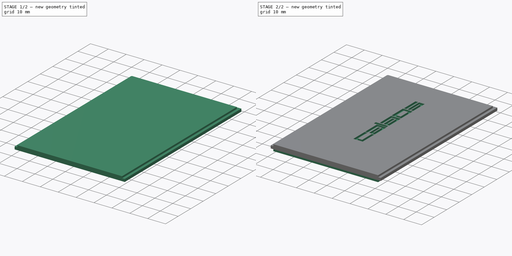
[diagram: build sequence overview — one tinted view per stage of 2, left to right]
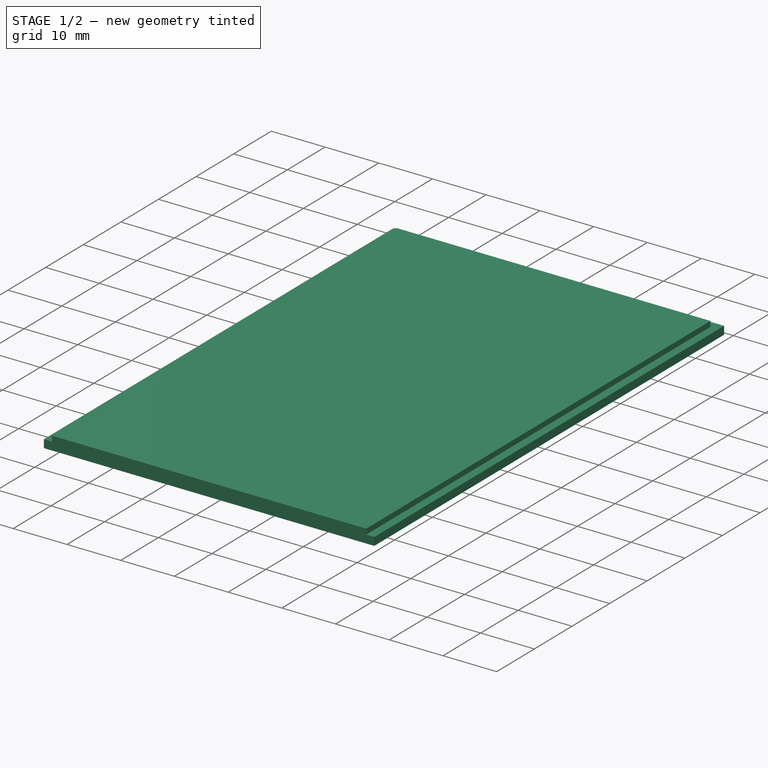
[diagram: stage 1 of 2 — iso view after this stage's code; geometry added in this stage tinted green]
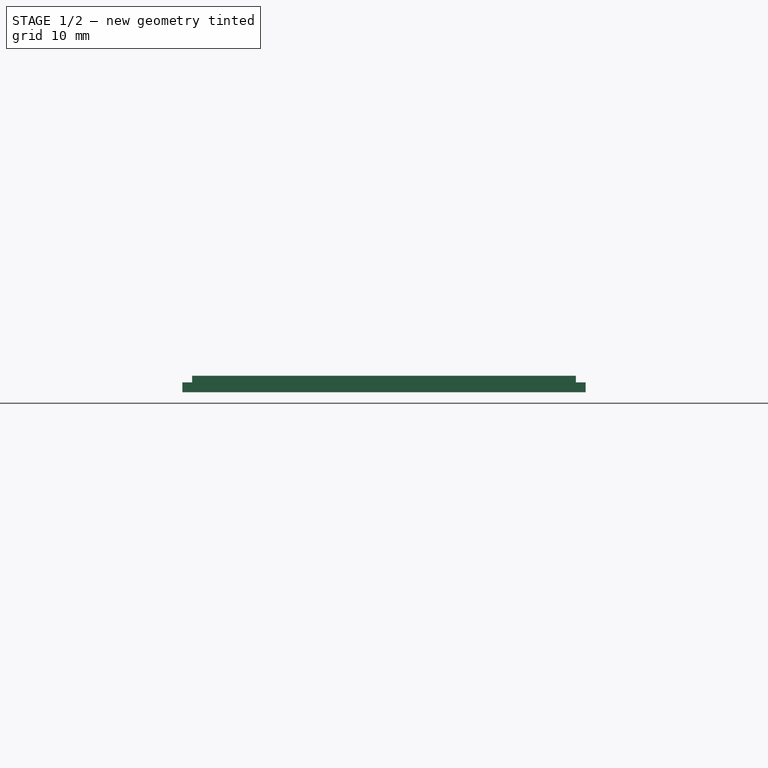
[diagram: stage 1 of 2 — front view after this stage's code; geometry added in this stage tinted green]
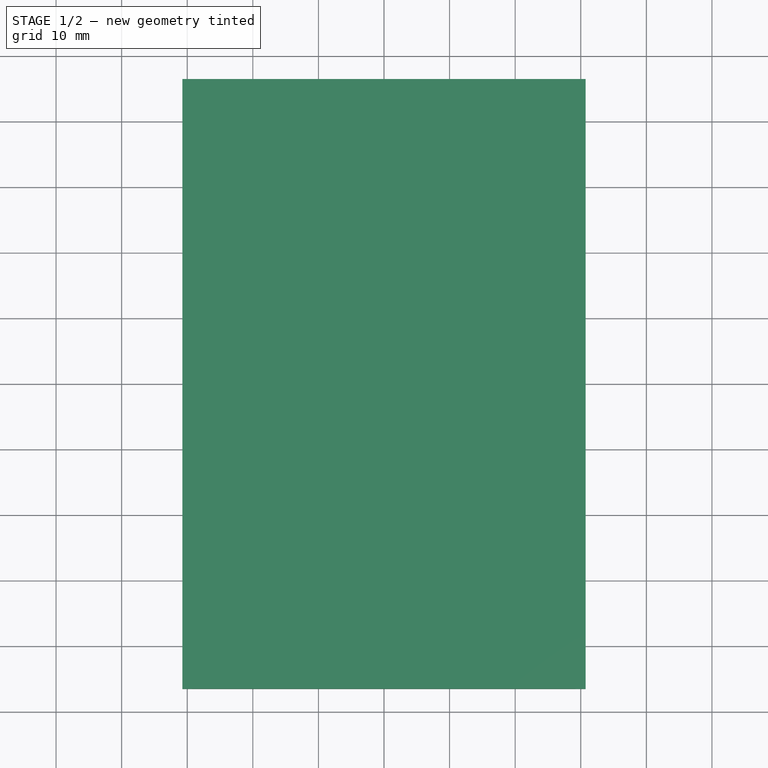
[diagram: stage 1 of 2 — top view after this stage's code; geometry added in this stage tinted green]
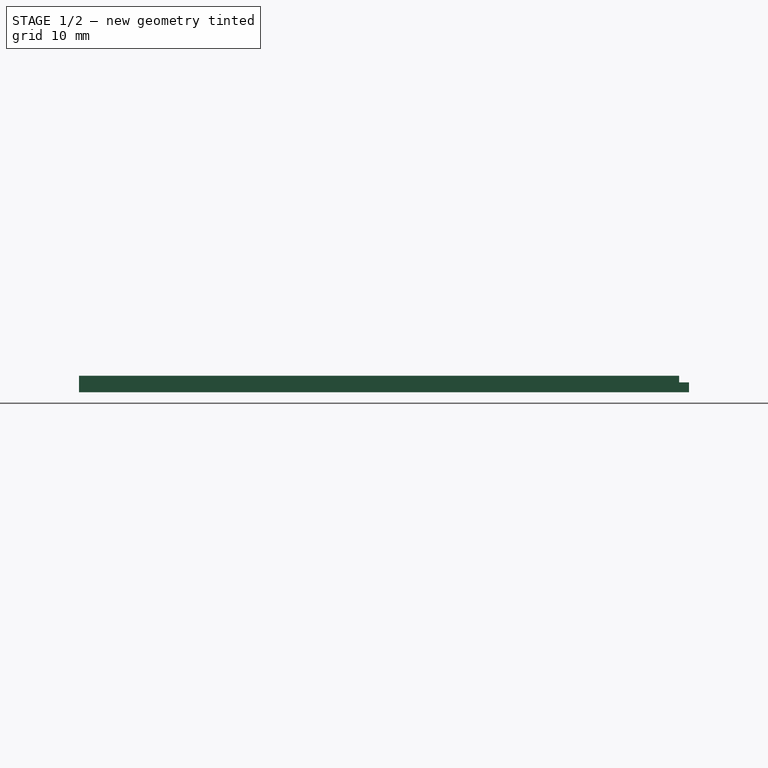
[diagram: stage 1 of 2 — right view after this stage's code; geometry added in this stage tinted green]
FCSTD DOCUMENT  (FreeCAD 0.16RUnknown)
Label: cover_calaos_server
License: All rights reserved
LicenseURL: http://en.wikipedia.org/wiki/All_rights_reserved
objects: Sketcher::SketchObject×4, PartDesign::Pad×3, Image::ImagePlane×1, PartDesign::Pocket×1
note: 12 computed .brp shape members not serialized (recipe doc carries the construction recipe); baked Part::Feature solids carry a one-line shape summary decoded from their .brp

FEATURE [Sketcher::SketchObject] Sketch
  sketch-geometry (4):
    g0: LineSegment StartX=-30.75 StartY=46.5 StartZ=0 EndX=30.75 EndY=46.5 EndZ=0
    g1: LineSegment StartX=30.75 StartY=46.5 StartZ=0 EndX=30.75 EndY=-46.5 EndZ=0
    g2: LineSegment StartX=30.75 StartY=-46.5 StartZ=0 EndX=-30.75 EndY=-46.5 EndZ=0
    g3: LineSegment StartX=-30.75 StartY=-46.5 StartZ=0 EndX=-30.75 EndY=46.5 EndZ=0
  constraints (12):
    c: Coincident(g0,g1)
    c: Coincident(g1,g2)
    c: Coincident(g2,g3)
    c: Coincident(g3,g0)
    c: Horizontal(g0)
    c: Horizontal(g2)
    c: Vertical(g1)
    c: Vertical(g3)
    c: Symmetric(g0,g0,g-2)
    c: Symmetric(g0,g1,g-1)
    c: Distance(g1) = 93
    c: Distance(g0) = 61.5
FEATURE [PartDesign::Pad] Pad  label="rail"
  Length = 1.5
  Length2 = 100
  Sketch = -> Sketch
  Type = 0
FEATURE [Sketcher::SketchObject] Sketch001
  ExternalGeometry = -> [Pad]
  Placement = pos=(0,0,1.5) rot=(0,0,1;0rad)
  Support = -> Pad [Face6]
  sketch-geometry (4):
    g0: LineSegment StartX=-29.25 StartY=-46.5 StartZ=0 EndX=29.25 EndY=-46.5 EndZ=0
    g1: LineSegment StartX=29.25 StartY=-46.5 StartZ=0 EndX=29.25 EndY=45 EndZ=0
    g2: LineSegment StartX=29.25 StartY=45 StartZ=0 EndX=-29.25 EndY=45 EndZ=0
    g3: LineSegment StartX=-29.25 StartY=45 StartZ=0 EndX=-29.25 EndY=-46.5 EndZ=0
  constraints (12):
    c: Coincident(g0,g1)
    c: Coincident(g1,g2)
    c: Coincident(g2,g3)
    c: Coincident(g3,g0)
    c: Horizontal(g0)
    c: Horizontal(g2)
    c: Vertical(g1)
    c: Vertical(g3)
    c: PointOnObject(g0,g-3)
    c: Symmetric(g1,g2,g-2)
    c: Distance(g1) = 91.5
    c: Distance(g2) = 58.5
FEATURE [PartDesign::Pad] Pad001  label="top"
  Length = 1
  Length2 = 100
  Sketch = -> Sketch001
  Type = 0
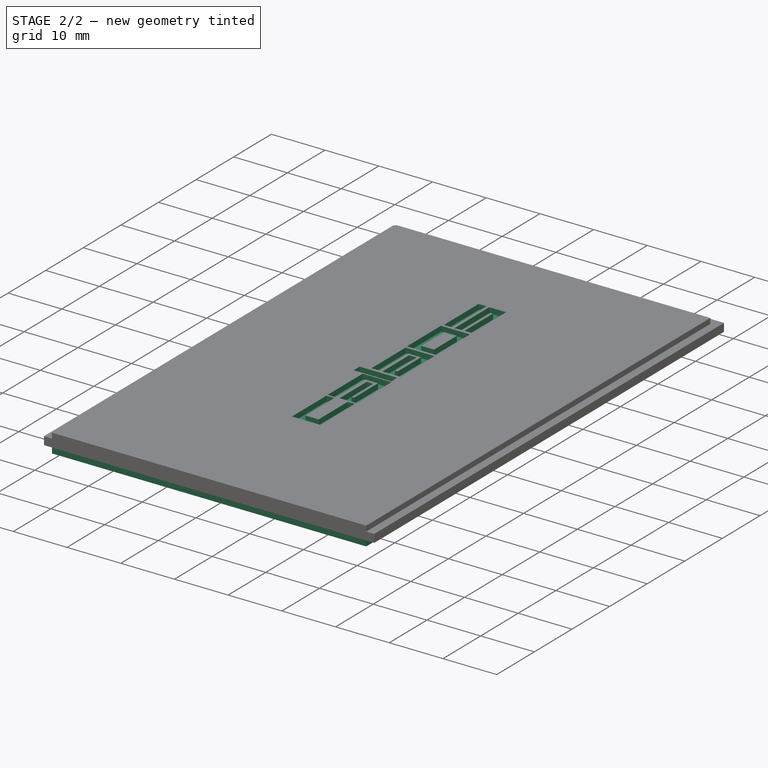
[diagram: stage 2 of 2 — iso view after this stage's code; geometry added in this stage tinted green]
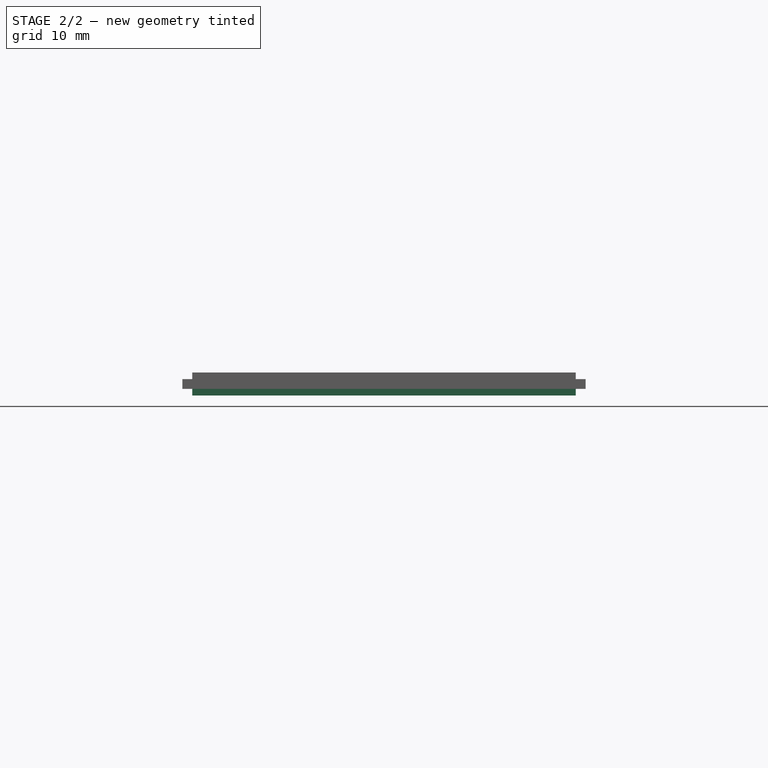
[diagram: stage 2 of 2 — front view after this stage's code; geometry added in this stage tinted green]
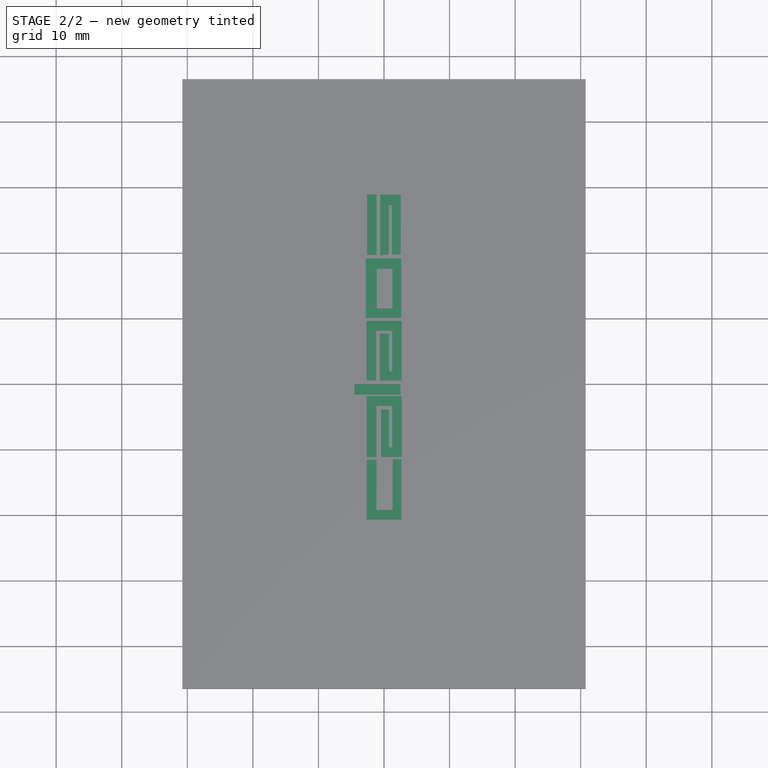
[diagram: stage 2 of 2 — top view after this stage's code; geometry added in this stage tinted green]
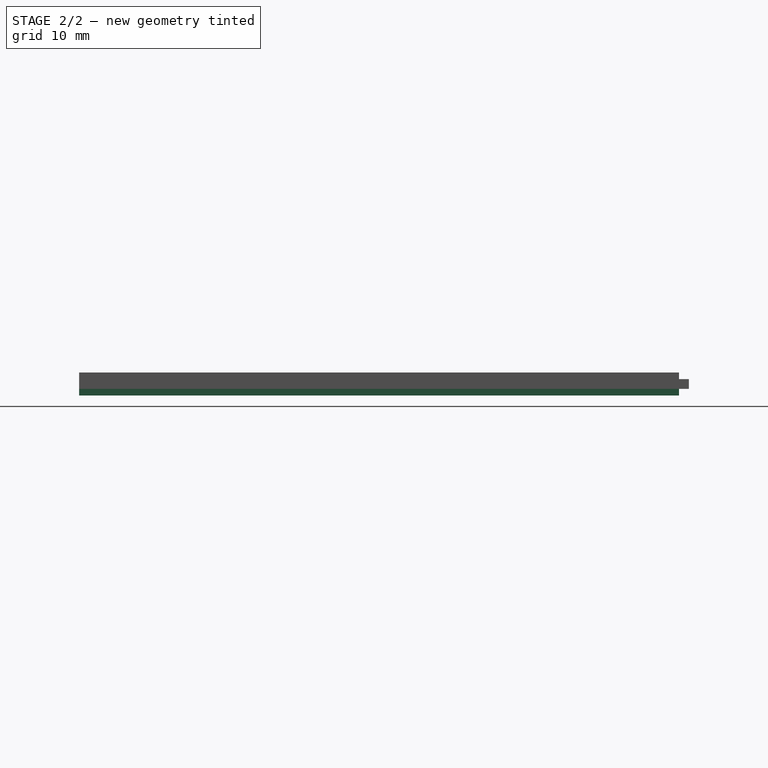
[diagram: stage 2 of 2 — right view after this stage's code; geometry added in this stage tinted green]
FEATURE [Sketcher::SketchObject] Sketch002
  ExternalGeometry = -> [Pad001]
  Placement = pos=(0,0,0) rot=(1,0,0;3.14159rad)
  Support = -> Pad001 [Face4]
  sketch-geometry (4):
    g0: LineSegment StartX=29.25 StartY=46.5 StartZ=0 EndX=-29.25 EndY=46.5 EndZ=0
    g1: LineSegment StartX=-29.25 StartY=46.5 StartZ=0 EndX=-29.25 EndY=-45 EndZ=0
    g2: LineSegment StartX=-29.25 StartY=-45 StartZ=0 EndX=29.25 EndY=-45 EndZ=0
    g3: LineSegment StartX=29.25 StartY=-45 StartZ=0 EndX=29.25 EndY=46.5 EndZ=0
  constraints (12):
    c: Coincident(g0,g1)
    c: Coincident(g1,g2)
    c: Coincident(g2,g3)
    c: Coincident(g3,g0)
    c: Horizontal(g0)
    c: Horizontal(g2)
    c: Vertical(g1)
    c: Vertical(g3)
    c: PointOnObject(g0,g-3)
    c: Symmetric(g2,g1,g-2)
    c: Distance(g3) = 91.5
    c: Distance(g2) = 58.5
FEATURE [PartDesign::Pad] Pad002  label="bottom"
  Length = 1
  Length2 = 100
  Sketch = -> Sketch002
  Type = 0
FEATURE [Image::ImagePlane] ImagePlane
  Placement = pos=(0,-1,9) rot=(0,0,1;1.5708rad)
  XSize = 60
  YSize = 9.49
FEATURE [Sketcher::SketchObject] Sketch003
  Placement = pos=(0,0,2.5) rot=(0,0,1;0rad)
  Support = -> Pad002 [Face16]
  sketch-geometry (56):
    g0: LineSegment StartX=-2.62154 StartY=-11.5568 StartZ=0 EndX=-1.14376 EndY=-11.5568 EndZ=0
    g1: LineSegment StartX=-1.14376 StartY=-11.5568 StartZ=0 EndX=-1.14376 EndY=-19.2624 EndZ=0
    g2: LineSegment StartX=-1.14376 StartY=-19.2624 StartZ=0 EndX=1.31042 EndY=-19.2624 EndZ=0
    g3: LineSegment StartX=1.31042 StartY=-19.2624 StartZ=0 EndX=1.31042 EndY=-11.5304 EndZ=0
    g4: LineSegment StartX=1.31042 StartY=-11.5304 StartZ=0 EndX=2.62988 EndY=-11.5304 EndZ=0
    g5: LineSegment StartX=2.62988 StartY=-11.5304 StartZ=0 EndX=2.62988 EndY=-20.7138 EndZ=0
    g6: LineSegment StartX=2.62988 StartY=-20.7138 StartZ=0 EndX=-2.62154 EndY=-20.7138 EndZ=0
    g7: LineSegment StartX=-2.62154 StartY=-20.7138 StartZ=0 EndX=-2.62154 EndY=-11.5568 EndZ=0
    g8: LineSegment StartX=-2.64775 StartY=-11.1811 StartZ=0 EndX=-1.14376 EndY=-11.1811 EndZ=0
    g9: LineSegment StartX=-1.14376 StartY=-11.1811 StartZ=0 EndX=-1.14376 EndY=-3.37615 EndZ=0
    g10: LineSegment StartX=-1.14376 StartY=-3.37615 StartZ=0 EndX=1.25765 EndY=-3.37615 EndZ=0
    g11: LineSegment StartX=1.25765 StartY=-3.37615 StartZ=0 EndX=1.25765 EndY=-9.73591 EndZ=0
    g12: LineSegment StartX=1.25765 StartY=-9.73591 StartZ=0 EndX=0.756256 EndY=-9.73591 EndZ=0
    g13: LineSegment StartX=0.756256 StartY=-9.73591 StartZ=0 EndX=0.756256 EndY=-3.93032 EndZ=0
    g14: LineSegment StartX=0.756256 StartY=-3.93032 StartZ=0 EndX=-0.45764 EndY=-3.93032 EndZ=0
    g15: LineSegment StartX=-0.45764 StartY=-3.93032 StartZ=0 EndX=-0.45764 EndY=-11.1609 EndZ=0
    g16: LineSegment StartX=-0.45764 StartY=-11.1609 StartZ=0 EndX=2.70905 EndY=-11.1609 EndZ=0
    g17: LineSegment StartX=2.70905 StartY=-11.1609 StartZ=0 EndX=2.70905 EndY=-1.89211 EndZ=0
    g18: LineSegment StartX=2.70905 StartY=-1.89211 StartZ=0 EndX=-2.64775 EndY=-1.89211 EndZ=0
    g19: LineSegment StartX=-2.64775 StartY=-1.89211 StartZ=0 EndX=-2.64775 EndY=-11.1811 EndZ=0
    g20: LineSegment StartX=-4.4954 StartY=-0.064355 StartZ=0 EndX=2.47131 EndY=-0.064355 EndZ=0
    g21: LineSegment StartX=2.47131 StartY=-0.064355 StartZ=0 EndX=2.55048 EndY=-1.6477 EndZ=0
    g22: LineSegment StartX=2.55048 StartY=-1.6477 StartZ=0 EndX=-4.4954 EndY=-1.6477 EndZ=0
    g23: LineSegment StartX=-4.4954 StartY=-1.6477 StartZ=0 EndX=-4.4954 EndY=-0.064355 EndZ=0
    g24: LineSegment StartX=-2.67554 StartY=0.499041 StartZ=0 EndX=-1.19677 EndY=0.499041 EndZ=0
    g25: LineSegment StartX=-1.19677 StartY=0.499041 StartZ=0 EndX=-1.19677 EndY=8.06347 EndZ=0
    g26: LineSegment StartX=-1.19677 StartY=8.06347 StartZ=0 EndX=1.25741 EndY=8.06347 EndZ=0
    g27: LineSegment StartX=1.25741 StartY=8.06347 StartZ=0 EndX=1.25741 EndY=1.83566 EndZ=0
    g28: LineSegment StartX=1.25741 StartY=1.83566 StartZ=0 EndX=0.756023 EndY=1.83566 EndZ=0
    g29: LineSegment StartX=0.756023 StartY=1.83566 StartZ=0 EndX=0.756023 EndY=7.64124 EndZ=0
    g30: LineSegment StartX=0.756023 StartY=7.64124 StartZ=0 EndX=-0.642597 EndY=7.64124 EndZ=0
    g31: LineSegment StartX=-0.642597 StartY=7.64124 StartZ=0 EndX=-0.642597 EndY=0.489815 EndZ=0
    g32: LineSegment StartX=-0.642597 StartY=0.489815 StartZ=0 EndX=2.68242 EndY=0.489815 EndZ=0
    g33: LineSegment StartX=2.68242 StartY=0.489815 StartZ=0 EndX=2.68242 EndY=9.57687 EndZ=0
    g34: LineSegment StartX=2.68242 StartY=9.57687 StartZ=0 EndX=-2.67554 EndY=9.57687 EndZ=0
    g35: LineSegment StartX=-2.67554 StartY=9.57687 StartZ=0 EndX=-2.67554 EndY=0.499041 EndZ=0
    g36: LineSegment StartX=-2.78102 StartY=19.1122 StartZ=0 EndX=2.62873 EndY=19.1122 EndZ=0
    g37: LineSegment StartX=2.62873 StartY=19.1122 StartZ=0 EndX=2.62873 EndY=10.0608 EndZ=0
    g38: LineSegment StartX=2.62873 StartY=10.0608 StartZ=0 EndX=-2.78102 EndY=10.0608 EndZ=0
    g39: LineSegment StartX=-2.78102 StartY=10.0608 StartZ=0 EndX=-2.78102 EndY=19.1122 EndZ=0
    g40: LineSegment StartX=-1.09221 StartY=17.5391 StartZ=0 EndX=1.2828 EndY=17.5391 EndZ=0
    g41: LineSegment StartX=1.2828 StartY=17.5391 StartZ=0 EndX=1.2828 EndY=11.4697 EndZ=0
    g42: LineSegment StartX=1.2828 StartY=11.4697 StartZ=0 EndX=-1.09221 EndY=11.4697 EndZ=0
    g43: LineSegment StartX=-1.09221 StartY=11.4697 StartZ=0 EndX=-1.09221 EndY=17.5391 EndZ=0
    g44: LineSegment StartX=-1.1186 StartY=19.6503 StartZ=0 EndX=-2.59639 EndY=19.6503 EndZ=0
    g45: LineSegment StartX=-2.59639 StartY=19.6503 StartZ=0 EndX=-2.59639 EndY=28.86 EndZ=0
    g46: LineSegment StartX=-2.59639 StartY=28.86 StartZ=0 EndX=-1.1186 EndY=28.86 EndZ=0
    g47: LineSegment StartX=-1.1186 StartY=28.86 StartZ=0 EndX=-1.1186 EndY=19.6503 EndZ=0
    g48: LineSegment StartX=-0.59082 StartY=19.5711 StartZ=0 EndX=-0.59082 EndY=28.8336 EndZ=0
    g49: LineSegment StartX=-0.59082 StartY=28.8336 StartZ=0 EndX=2.54948 EndY=28.8336 EndZ=0
    g50: LineSegment StartX=2.54948 StartY=28.8336 StartZ=0 EndX=2.54948 EndY=19.7294 EndZ=0
    g51: LineSegment StartX=2.54948 StartY=19.7294 StartZ=0 EndX=1.20364 EndY=19.7294 EndZ=0
    g52: LineSegment StartX=1.20364 StartY=19.7294 StartZ=0 EndX=1.20364 EndY=27.2503 EndZ=0
    g53: LineSegment StartX=1.20364 StartY=27.2503 StartZ=0 EndX=0.728631 EndY=27.2503 EndZ=0
    g54: LineSegment StartX=0.728631 StartY=27.2503 StartZ=0 EndX=0.728631 EndY=19.7294 EndZ=0
    g55: LineSegment StartX=0.728631 StartY=19.7294 StartZ=0 EndX=-0.59082 EndY=19.5711 EndZ=0
  constraints (110):
    c: Horizontal(g0)
    c: Coincident(g0,g1)
    c: Vertical(g1)
    c: Coincident(g1,g2)
    c: Horizontal(g2)
    c: Coincident(g2,g3)
    c: Vertical(g3)
    c: Coincident(g3,g4)
    c: Horizontal(g4)
    c: Coincident(g4,g5)
    c: Vertical(g5)
    c: Coincident(g5,g6)
    c: Horizontal(g6)
    c: Coincident(g6,g7)
    c: Coincident(g7,g0)
    c: Vertical(g7)
    c: Horizontal(g8)
    c: Coincident(g8,g9)
    c: Vertical(g9)
    c: Coincident(g9,g10)
    c: Horizontal(g10)
    c: Coincident(g10,g11)
    c: Vertical(g11)
    c: Coincident(g11,g12)
    c: Horizontal(g12)
    c: Coincident(g12,g13)
    c: Vertical(g13)
    c: Coincident(g13,g14)
    c: Horizontal(g14)
    c: Coincident(g14,g15)
    c: Vertical(g15)
    c: Coincident(g15,g16)
    c: Horizontal(g16)
    c: Coincident(g16,g17)
    c: Vertical(g17)
    c: Coincident(g17,g18)
    c: Horizontal(g18)
    c: Coincident(g18,g19)
    c: Coincident(g19,g8)
    c: Vertical(g19)
    c: Horizontal(g20)
    c: Coincident(g20,g21)
    c: Coincident(g21,g22)
    c: Horizontal(g22)
    c: Coincident(g22,g23)
    c: Coincident(g23,g20)
    c: Vertical(g23)
    c: Horizontal(g24)
    c: Coincident(g24,g25)
    c: Vertical(g25)
    c: Coincident(g25,g26)
    c: Horizontal(g26)
    c: Coincident(g26,g27)
    c: Vertical(g27)
    c: Coincident(g27,g28)
    c: Horizontal(g28)
    c: Coincident(g28,g29)
    c: Vertical(g29)
    c: Coincident(g29,g30)
    c: Horizontal(g30)
    c: Coincident(g30,g31)
    c: Vertical(g31)
    c: Coincident(g31,g32)
    c: Horizontal(g32)
    c: Coincident(g32,g33)
    c: Vertical(g33)
    c: Coincident(g33,g34)
    c: Horizontal(g34)
    c: Coincident(g34,g35)
    c: Coincident(g35,g24)
    c: Vertical(g35)
    c: Horizontal(g36)
    c: Coincident(g36,g37)
    c: Vertical(g37)
    c: Coincident(g37,g38)
    c: Horizontal(g38)
    c: Coincident(g38,g39)
    c: Coincident(g39,g36)
    c: Vertical(g39)
    c: Horizontal(g40)
    c: Coincident(g40,g41)
    c: Vertical(g41)
    c: Coincident(g41,g42)
    c: Horizontal(g42)
    c: Coincident(g42,g43)
    c: Coincident(g43,g40)
    c: Vertical(g43)
    c: Horizontal(g44)
    c: Coincident(g44,g45)
    c: Vertical(g45)
    c: Coincident(g45,g46)
    c: Horizontal(g46)
    c: Coincident(g46,g47)
    c: Coincident(g47,g44)
    c: Vertical(g47)
    c: Vertical(g48)
    c: Coincident(g48,g49)
    c: Horizontal(g49)
    c: Coincident(g49,g50)
    c: Vertical(g50)
    c: Coincident(g50,g51)
    c: Horizontal(g51)
    c: Coincident(g51,g52)
    c: Vertical(g52)
    c: Coincident(g52,g53)
    c: Horizontal(g53)
    c: Coincident(g53,g54)
    c: Vertical(g54)
    c: Coincident(g54,g55)
    c: Coincident(g48,g55)
FEATURE [PartDesign::Pocket] Pocket
  Length = 1
  Sketch = -> Sketch003
  Type = 0
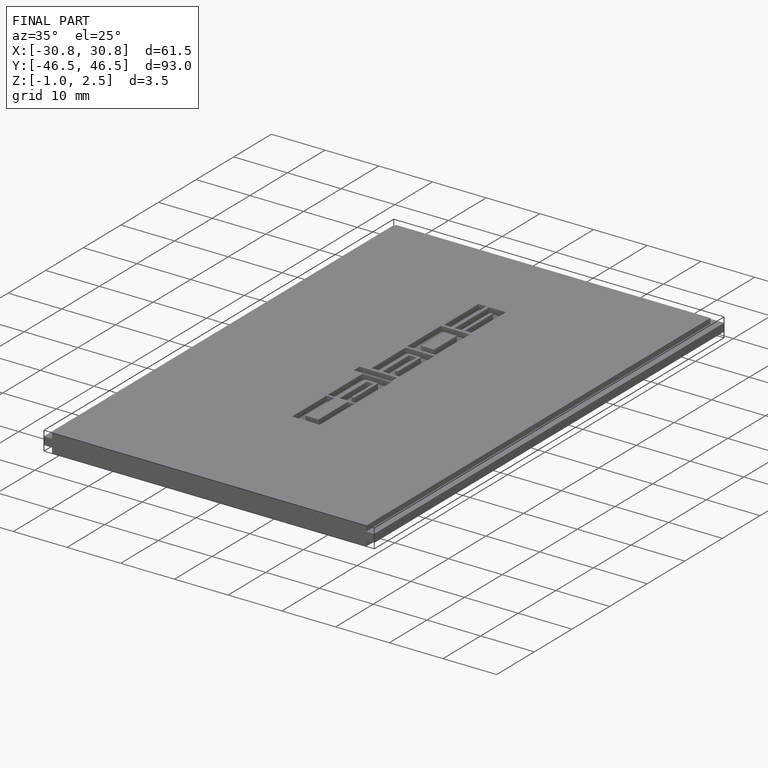
[diagram: finished part — iso view with bounding-box wireframe]
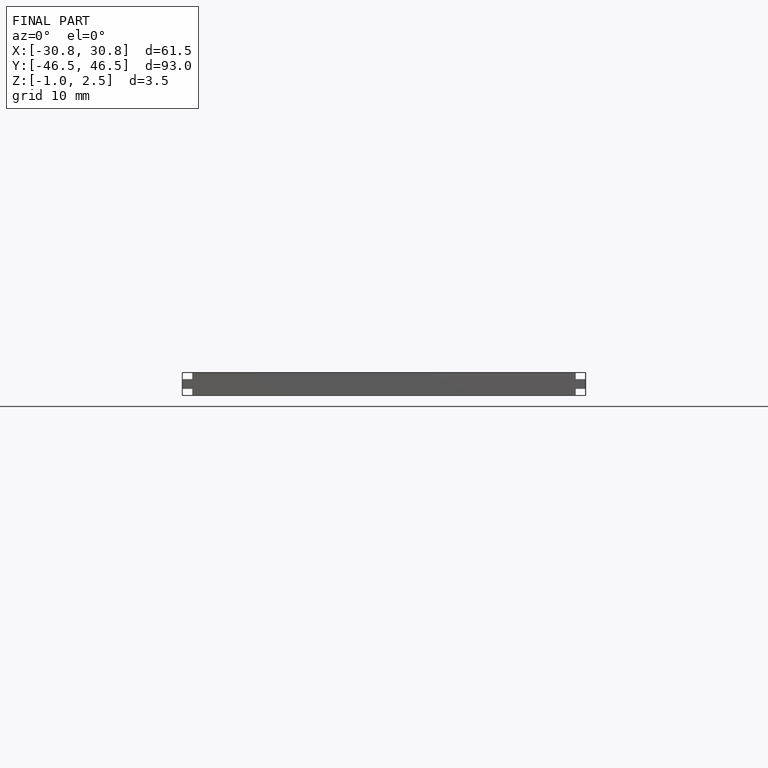
[diagram: finished part — front view with bounding-box wireframe]
